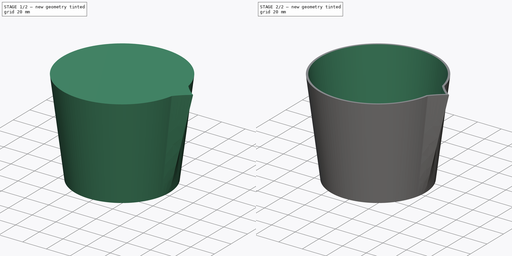
[diagram: build sequence overview — one tinted view per stage of 2, left to right]
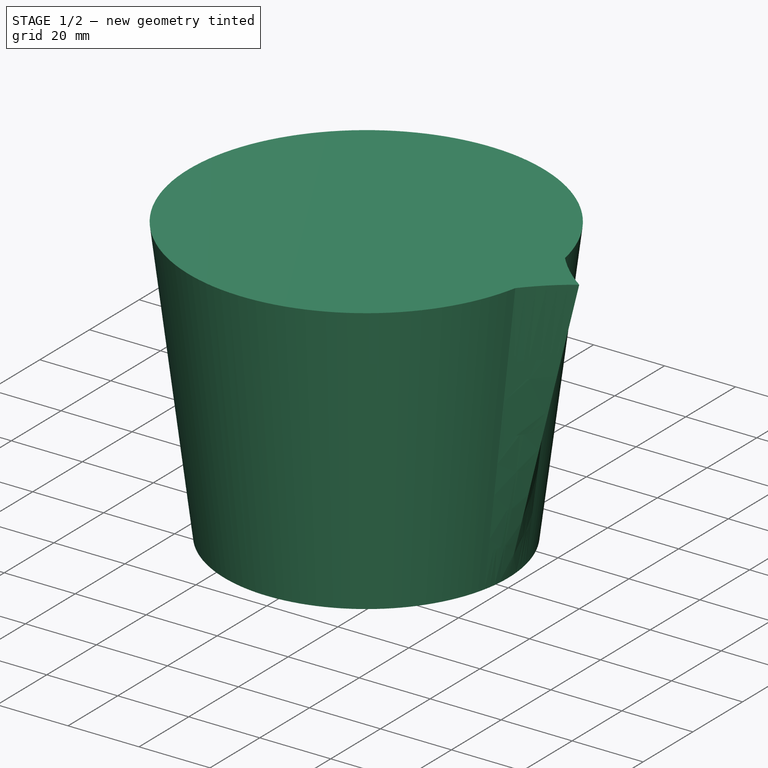
[diagram: stage 1 of 2 — iso view after this stage's code; geometry added in this stage tinted green]
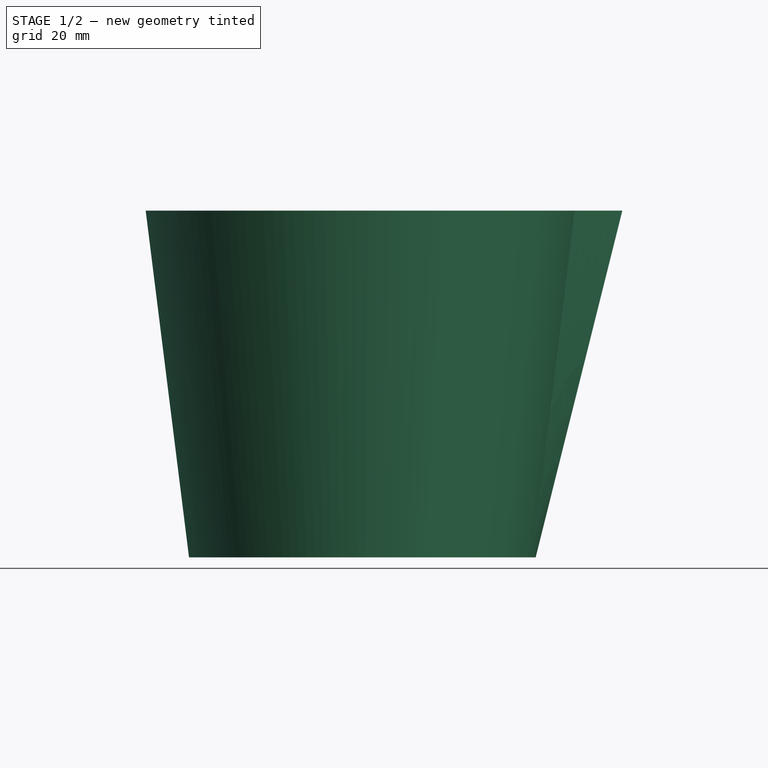
[diagram: stage 1 of 2 — front view after this stage's code; geometry added in this stage tinted green]
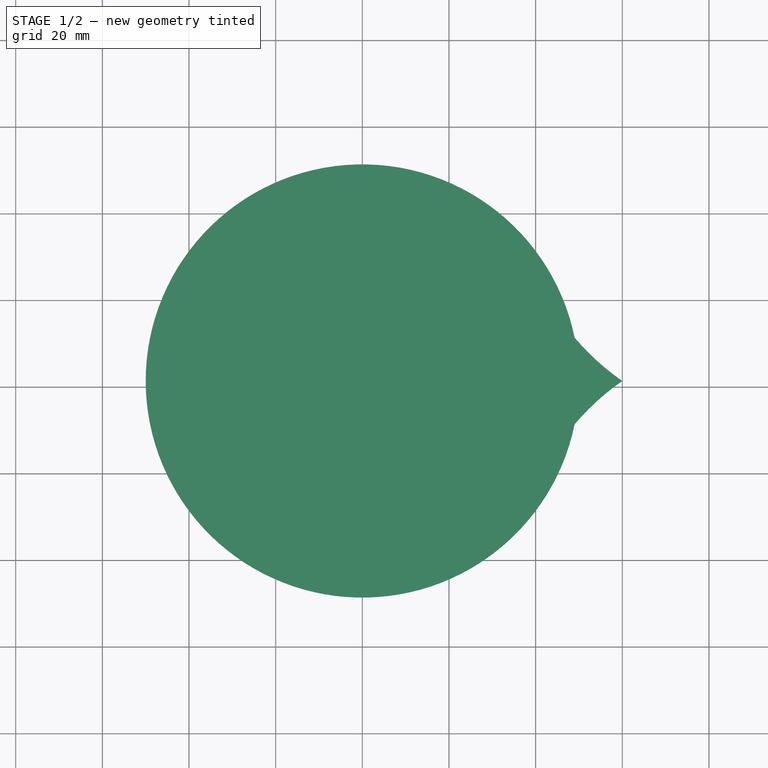
[diagram: stage 1 of 2 — top view after this stage's code; geometry added in this stage tinted green]
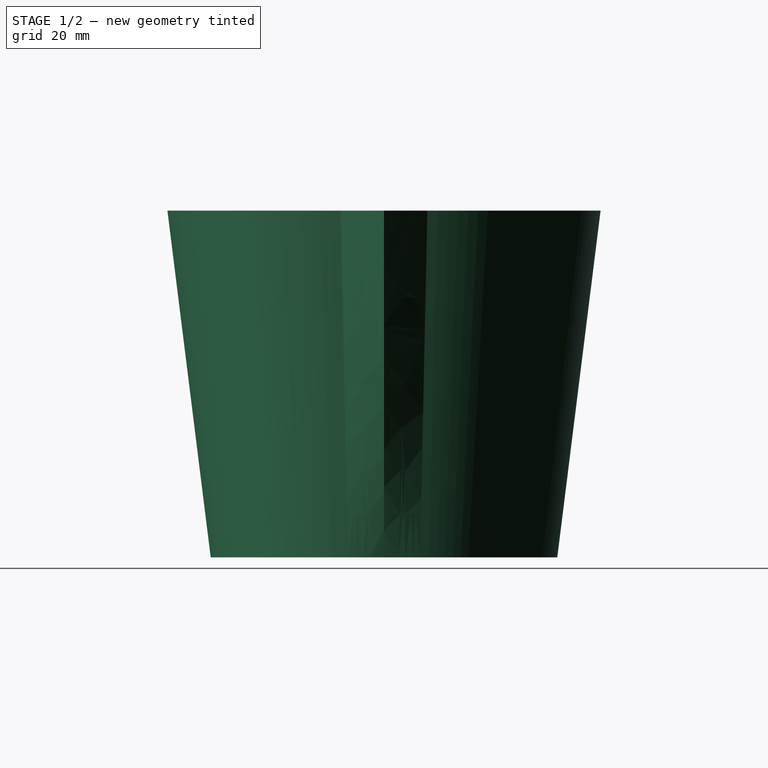
[diagram: stage 1 of 2 — right view after this stage's code; geometry added in this stage tinted green]
FCSTD DOCUMENT  (FreeCAD 0.19R20310 (Git))
Label: vaso 500ml_v2
License: All rights reserved
LicenseURL: http://en.wikipedia.org/wiki/All_rights_reserved
objects: Sketcher::SketchObject×3, PartDesign::AdditiveLoft×1, PartDesign::Thickness×1, PartDesign::Body×1
note: 8 computed .brp shape members not serialized (recipe doc carries the construction recipe); baked Part::Feature solids carry a one-line shape summary decoded from their .brp

FEATURE [Sketcher::SketchObject] Sketch
  MapMode = 5
  Support = -> [XY_Plane]
  sketch-geometry (1):
    g0: Circle CenterX=0 CenterY=0 CenterZ=0 NormalX=0 NormalY=0 NormalZ=1 AngleXU=0 Radius=40
  constraints (2):
    c: Coincident(g0,g-1)
    c: Radius(g0) = 40
FEATURE [Sketcher::SketchObject] Sketch001
  AttachmentOffset = pos=(0,0,80) rot=(0,0,1;0rad)
  MapMode = 5
  Placement = pos=(0,0,80) rot=(0,0,1;0rad)
  Support = -> [XY_Plane]
  sketch-geometry (3):
    g0: ArcOfCircle CenterX=0 CenterY=0 CenterZ=0 NormalX=0 NormalY=0 NormalZ=1 AngleXU=0 Radius=50 StartAngle=0.201358 EndAngle=6.08183
    g1: ArcOfCircle CenterX=92.4737 CenterY=46.8154 CenterZ=0 NormalX=0 NormalY=0 NormalZ=1 AngleXU=0 Radius=56.9756 StartAngle=3.84414 EndAngle=4.10594
    g2: ArcOfCircle CenterX=92.4737 CenterY=-46.8154 CenterZ=0 NormalX=0 NormalY=0 NormalZ=1 AngleXU=0 Radius=56.9756 StartAngle=2.17725 EndAngle=2.43905
  constraints (12):
    c: Coincident(g0,g-1)
    c: Radius(g0) = 50
    c: PointOnObject(g1,g-1)
    c: DistanceX(g0,g1) = 60
    c: Angle(g1) = 0.261799
    c: Angle(g2) = 0.261799
    c: Coincident(g0,g1)
    c: Coincident(g0,g2)
    c: DistanceY(g0,g0) = 10
    c: Coincident(g0,g2)
    c: Coincident(g2,g1)
    c: DistanceY(g0,g0) = 10
FEATURE [Sketcher::SketchObject] Sketch003
  AttachmentOffset = pos=(0,0,50) rot=(0,0,1;0rad)
  MapMode = 5
  Placement = pos=(0,0,50) rot=(0,0,1;0rad)
  Support = -> [XY_Plane]
  sketch-geometry (3):
    g0: ArcOfCircle CenterX=63.4894 CenterY=6.29788 CenterZ=0 NormalX=0 NormalY=0 NormalZ=1 AngleXU=0 Radius=19.5326 StartAngle=3.20809 EndAngle=3.46989
    g1: ArcOfCircle CenterX=63.4894 CenterY=-6.29788 CenterZ=0 NormalX=0 NormalY=0 NormalZ=1 AngleXU=0 Radius=19.5326 StartAngle=2.8133 EndAngle=3.0751
    g2: ArcOfCircle CenterX=0 CenterY=0 CenterZ=0 NormalX=0 NormalY=0 NormalZ=1 AngleXU=0 Radius=44.2832 StartAngle=0.0845936 EndAngle=6.19859
  constraints (12):
    c: PointOnObject(g0,g-1)
    c: DistanceX(g-1,g0) = 45
    c: Angle(g0) = 0.261799
    c: DistanceY(g-1,g0) = 5
    c: Angle(g1) = 0.261799
    c: Symmetric(g0,g1,g-1)
    c: Coincident(g1,g0)
    c: DistanceX(g0,g0) = 1
    c: Coincident(g2,g-1)
    c: PointOnObject(g1,g2)
    c: PointOnObject(g2,g0)
    c: PointOnObject(g2,g1)
FEATURE [PartDesign::AdditiveLoft] AdditiveLoft
  Closed = false
  Profile = -> Sketch
  Ruled = false
  Sections = -> [Sketch001]
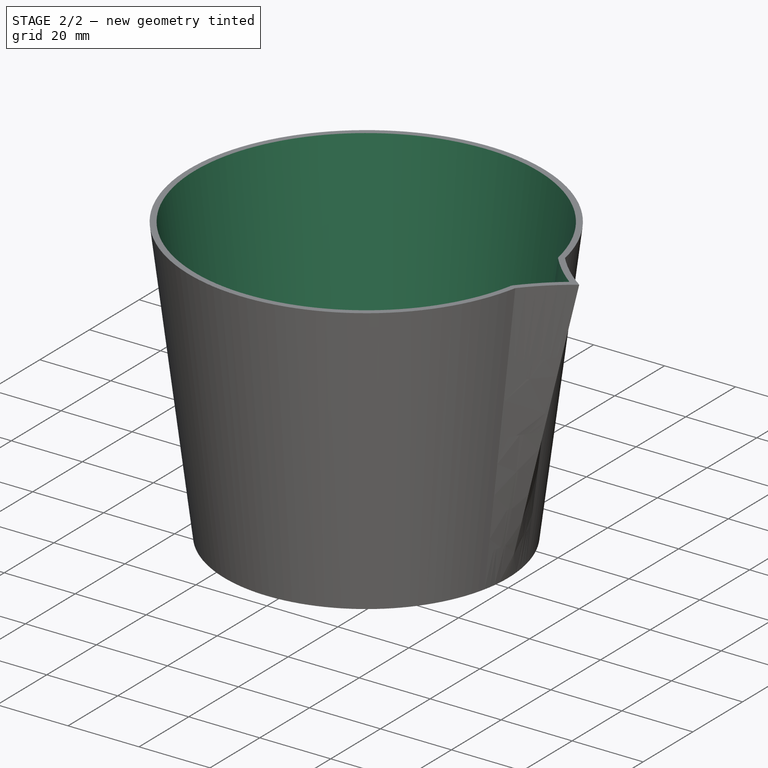
[diagram: stage 2 of 2 — iso view after this stage's code; geometry added in this stage tinted green]
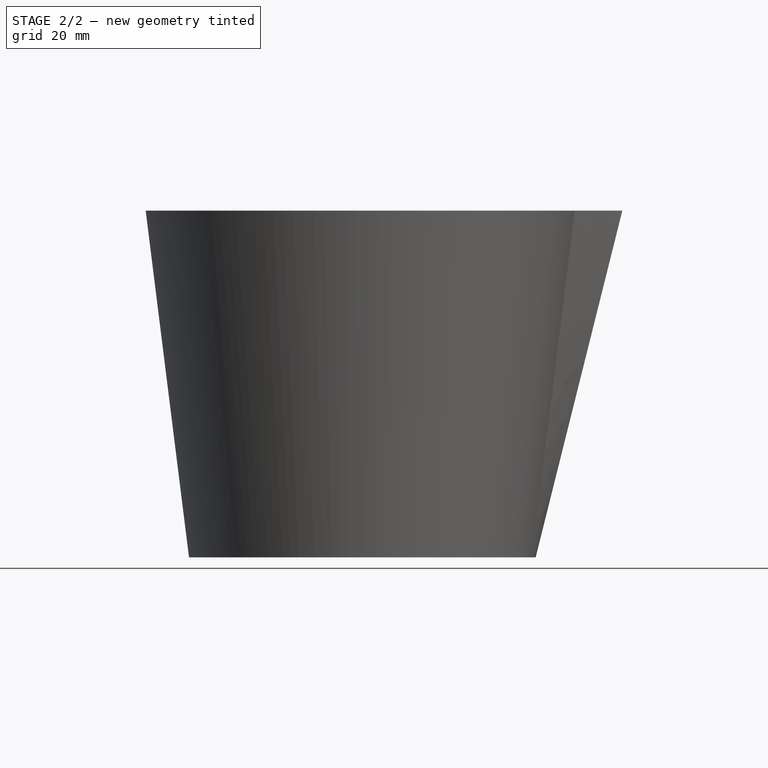
[diagram: stage 2 of 2 — front view after this stage's code; geometry added in this stage tinted green]
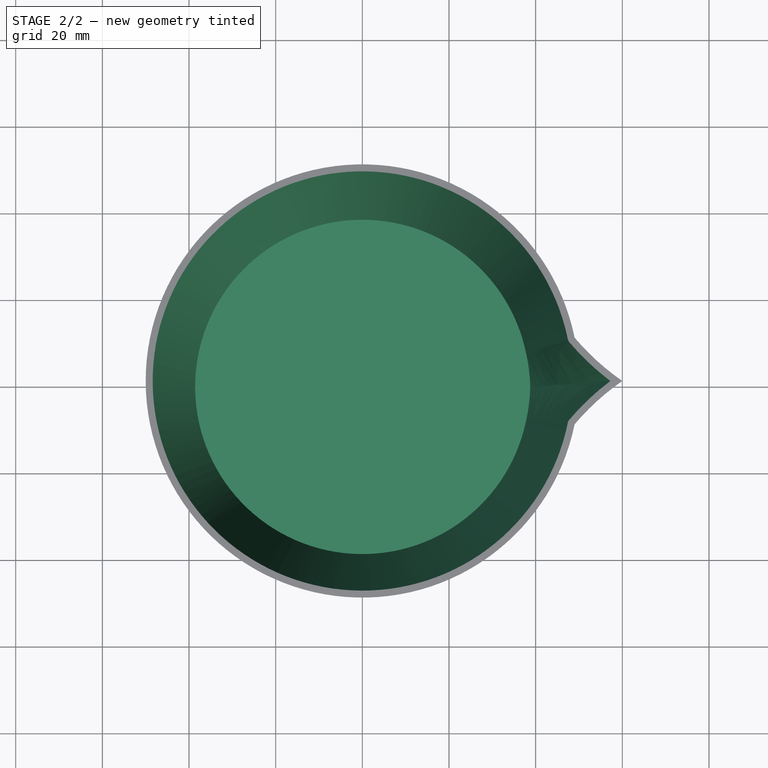
[diagram: stage 2 of 2 — top view after this stage's code; geometry added in this stage tinted green]
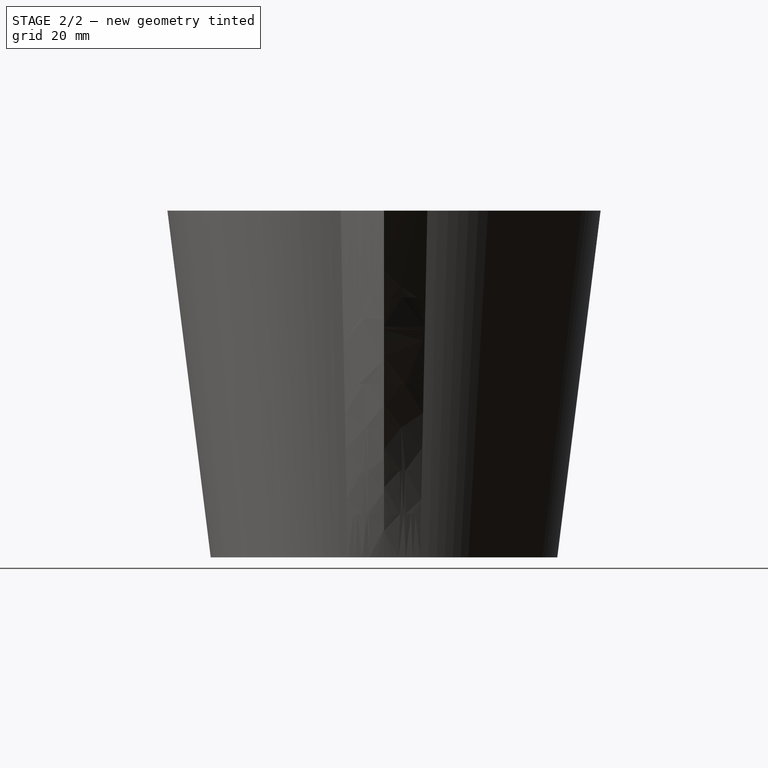
[diagram: stage 2 of 2 — right view after this stage's code; geometry added in this stage tinted green]
FEATURE [PartDesign::Thickness] Thickness
  Base = -> AdditiveLoft [Face3]
  BaseFeature = -> AdditiveLoft
  Intersection = false
  Join = 0
  Mode = 0
  Reversed = true
  SupportTransform = true
  Value = 1.6
FEATURE [PartDesign::Body] Body
  Group = -> [Sketch,Sketch001,Sketch003,AdditiveLoft,Thickness]
  Origin = -> Origin
  Tip = -> Thickness
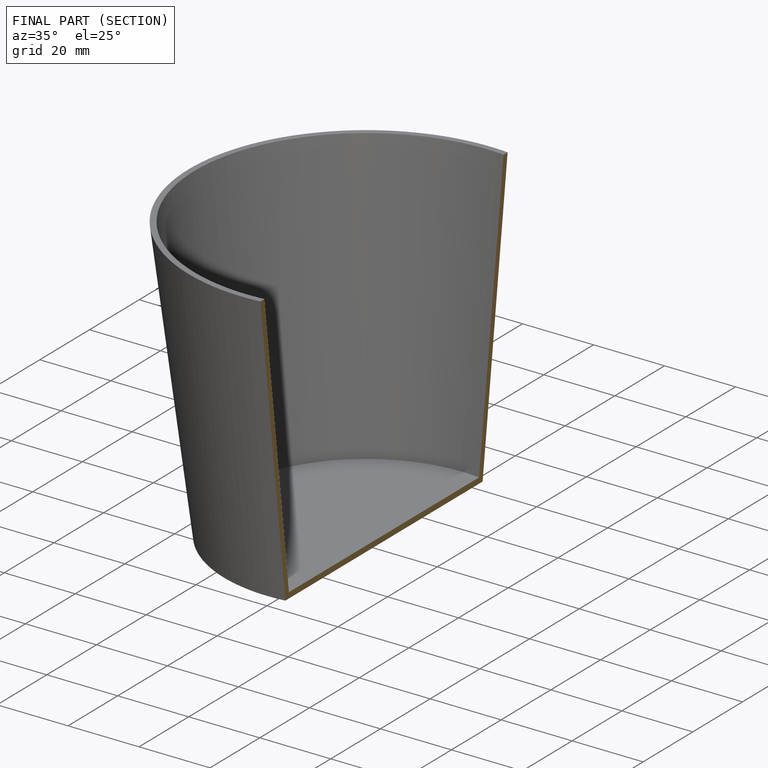
[diagram: finished part — half-section view (interior)]
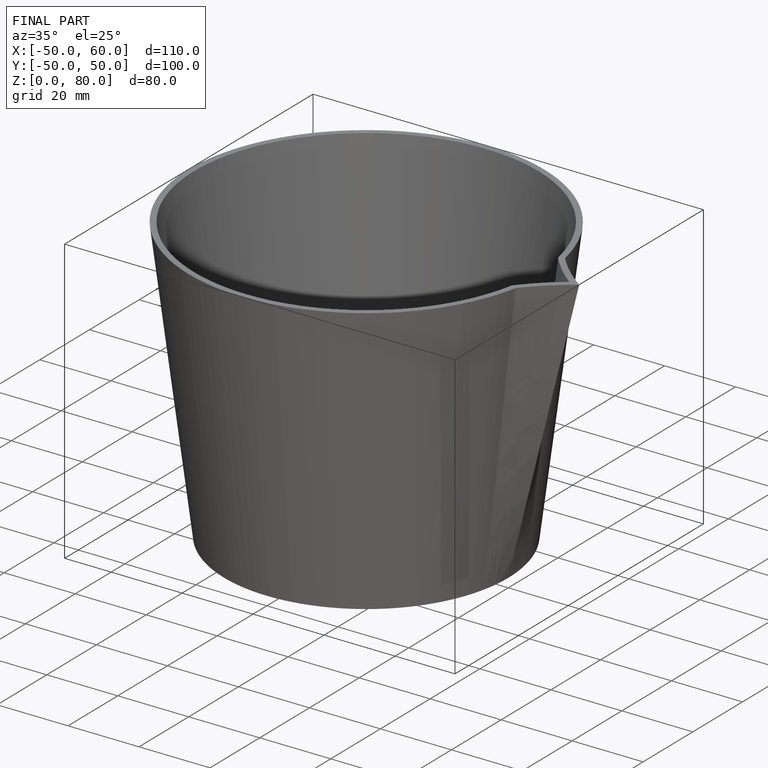
[diagram: finished part — iso view with bounding-box wireframe]
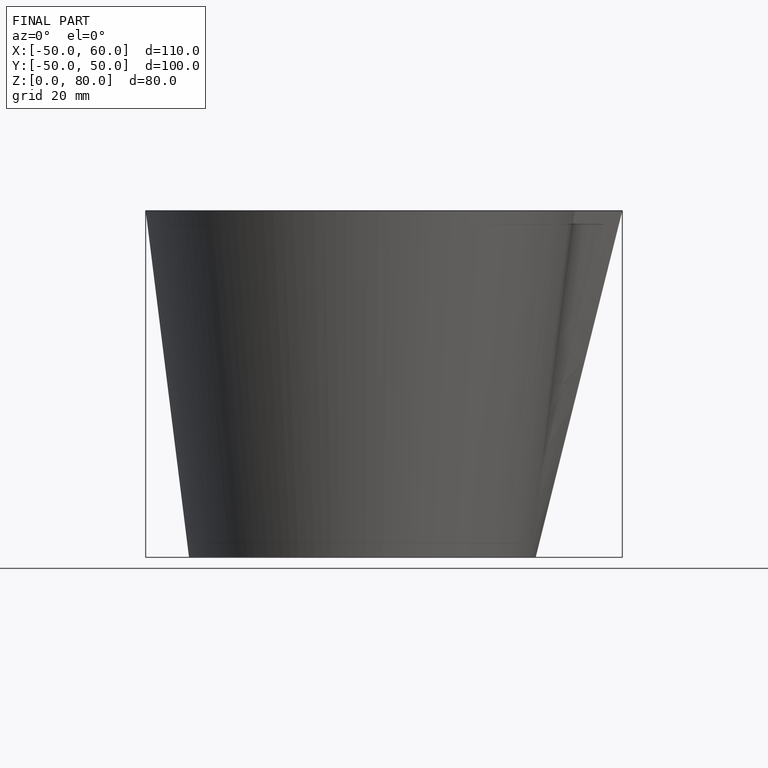
[diagram: finished part — front view with bounding-box wireframe]
